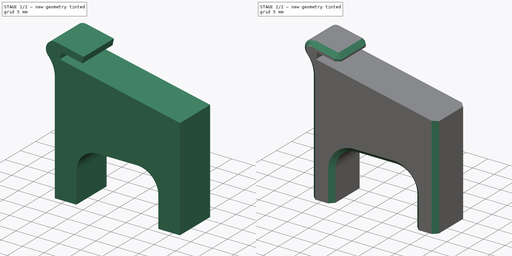
[diagram: build sequence overview — one tinted view per stage of 2, left to right]
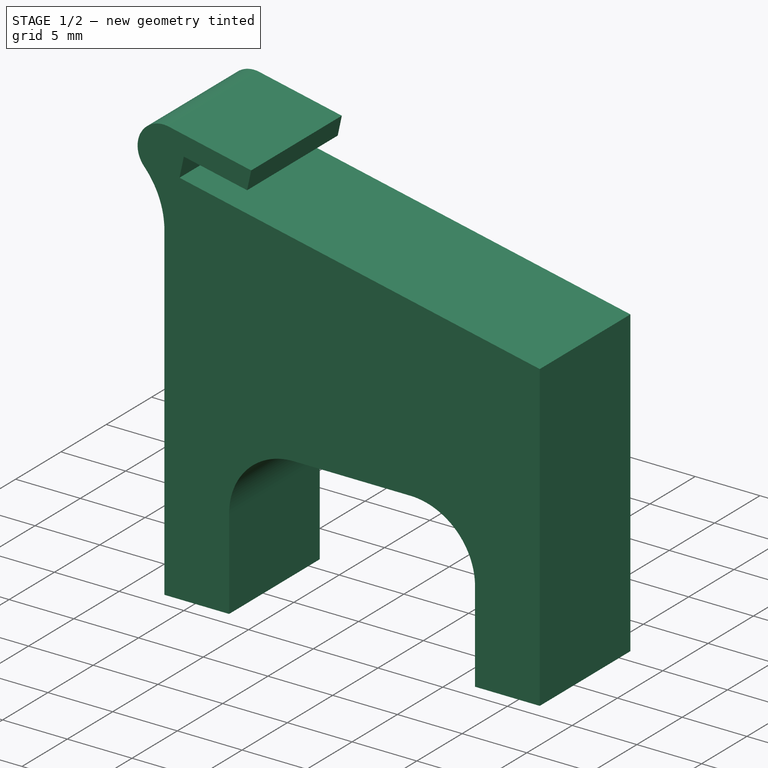
[diagram: stage 1 of 2 — iso view after this stage's code; geometry added in this stage tinted green]
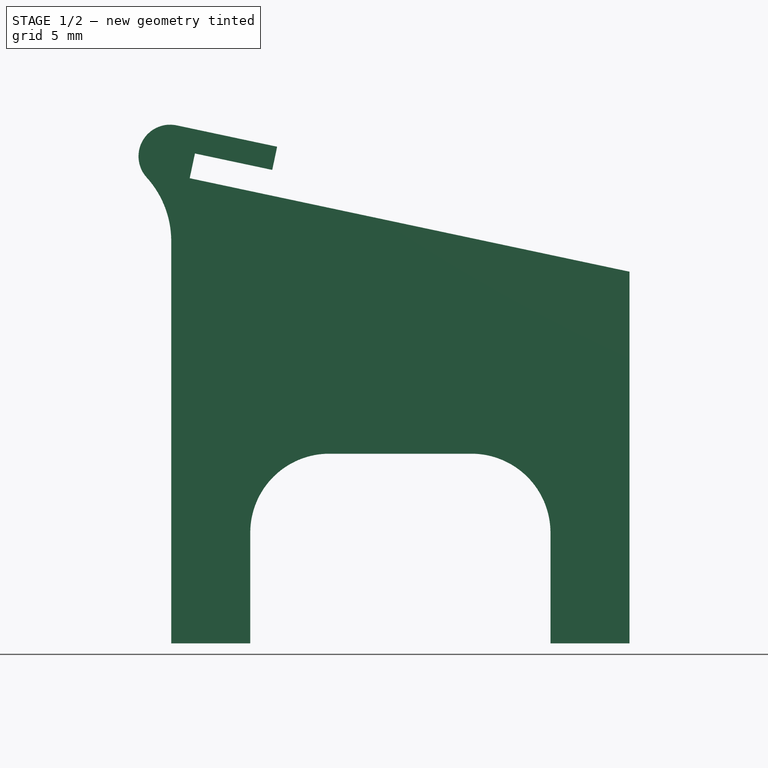
[diagram: stage 1 of 2 — front view after this stage's code; geometry added in this stage tinted green]
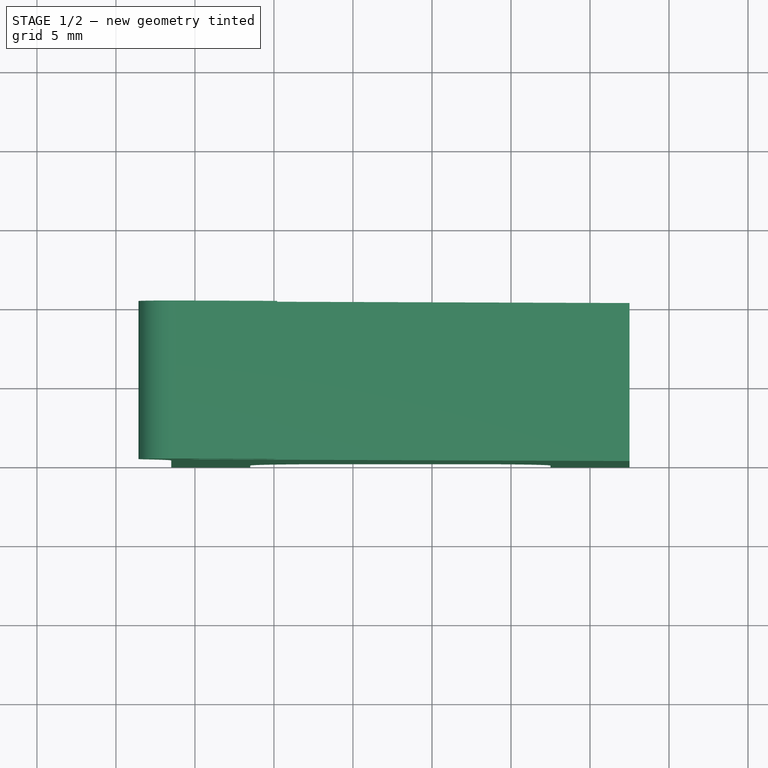
[diagram: stage 1 of 2 — top view after this stage's code; geometry added in this stage tinted green]
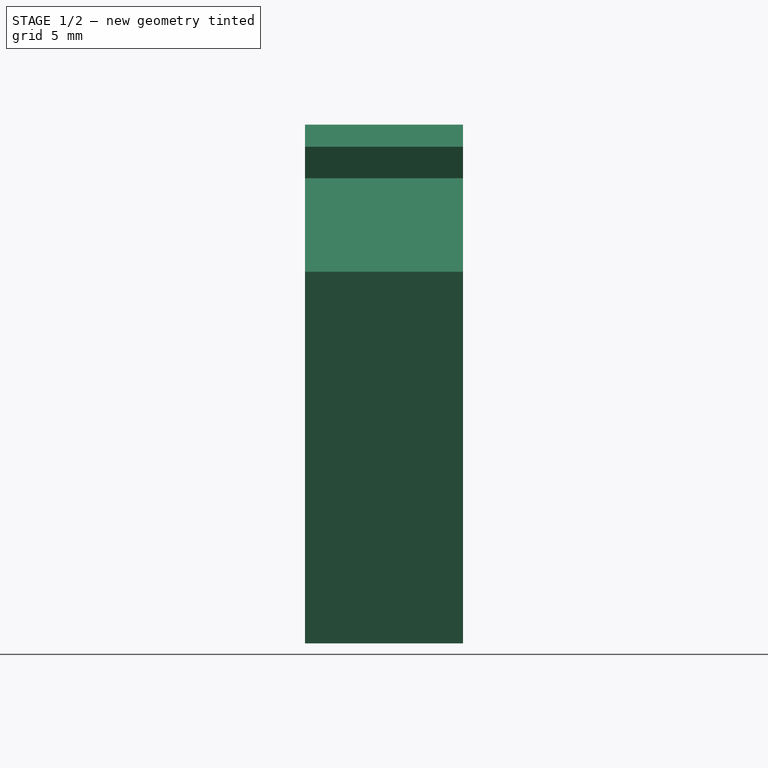
[diagram: stage 1 of 2 — right view after this stage's code; geometry added in this stage tinted green]
FCSTD DOCUMENT  (FreeCAD 1.1R20260108 (Git shallow))
Label: XE-mid-keeb-support
License: Creative Commons Attribution 4.0
LicenseURL: https://creativecommons.org/licenses/by/4.0/
objects: App::Point×1, Sketcher::SketchObject×1, PartDesign::Pad×1, PartDesign::Chamfer×1, PartDesign::Body×1
note: 9 computed .brp shape members not serialized (recipe doc carries the construction recipe); baked Part::Feature solids carry a one-line shape summary decoded from their .brp

FEATURE [App::Point] Origin001
  Role = Origin
FEATURE [Sketcher::SketchObject] Sketch
  ArcFitTolerance = 1e-06
  AttachmentSupport = -> [Origin]
  ExternalTypes = [0]
  FullyConstrained = true
  MakeInternals = false
  MapMode = 5
  Placement = pos=(0,0,0) rot=(1,0,0;1.5708rad)
  sketch-geometry (16):
    g0: LineSegment StartX=-1.5 StartY=0 StartZ=0 EndX=-1.5 EndY=25.4517 EndZ=0
    g1: ArcOfCircle CenterX=-1.57118 CenterY=30.8228 CenterZ=0 NormalX=0 NormalY=0 NormalZ=1 AngleXU=0 Radius=2 StartAngle=1.36136 EndAngle=3.87768
    g2: LineSegment StartX=-1.15535 StartY=32.7791 StartZ=0 EndX=5.20261 EndY=31.4277 EndZ=0
    g3: LineSegment StartX=5.20261 StartY=31.4277 StartZ=0 EndX=4.89074 EndY=29.9604 EndZ=0
    g4: LineSegment StartX=4.89074 StartY=29.9604 StartZ=0 EndX=0 EndY=31 EndZ=0
    g5: LineSegment StartX=0 StartY=31 StartZ=0 EndX=-0.332659 EndY=29.435 EndZ=0
    g6: LineSegment StartX=-0.332659 StartY=29.435 StartZ=0 EndX=27.5 EndY=23.5189 EndZ=0
    g7: LineSegment StartX=27.5 StartY=23.5189 StartZ=0 EndX=27.5 EndY=0 EndZ=0
    g8: LineSegment StartX=27.5 StartY=0 StartZ=0 EndX=22.5 EndY=0 EndZ=0
    g9: LineSegment StartX=22.5 StartY=0 StartZ=0 EndX=22.5 EndY=7 EndZ=0
    g10: ArcOfCircle CenterX=17.5 CenterY=7 CenterZ=0 NormalX=0 NormalY=0 NormalZ=1 AngleXU=0 Radius=5 StartAngle=0 EndAngle=1.5708
    g11: LineSegment StartX=17.5 StartY=12 StartZ=0 EndX=8.5 EndY=12 EndZ=0
    g12: ArcOfCircle CenterX=8.5 CenterY=7 CenterZ=0 NormalX=0 NormalY=0 NormalZ=1 AngleXU=0 Radius=5 StartAngle=1.5708 EndAngle=3.14159
    g13: LineSegment StartX=3.5 StartY=7 StartZ=0 EndX=3.5 EndY=0 EndZ=0
    g14: LineSegment StartX=3.5 StartY=0 StartZ=0 EndX=-1.5 EndY=0 EndZ=0
    g15: ArcOfCircle CenterX=-7.5 CenterY=25.4517 CenterZ=0 NormalX=0 NormalY=0 NormalZ=1 AngleXU=0 Radius=6 StartAngle=0 EndAngle=0.736085
  constraints (50):
    c: PointOnObject(g0,g-1)
    c: Vertical(g0)
    c: Coincident(g2,g3)
    c: Coincident(g3,g4)
    c: PointOnObject(g4,g-2)
    c: Coincident(g4,g5)
    c: Coincident(g5,g6)
    c: Coincident(g6,g7)
    c: PointOnObject(g7,g-1)
    c: Vertical(g7)
    c: Coincident(g7,g8)
    c: PointOnObject(g8,g-1)
    c: Coincident(g8,g9)
    c: Vertical(g9)
    c: Coincident(g10,g11)
    c: Horizontal(g11)
    c: Coincident(g12,g13)
    c: PointOnObject(g13,g-1)
    c: Vertical(g13)
    c: Coincident(g13,g14)
    c: Coincident(g14,g0)
    c: Equal(g12,g10)
    c: Equal(g14,g8)
    c: Tangent(g1,g2) = 1.5708
    c: Parallel(g2,g4)
    c: Parallel(g4,g6)
    c: Perpendicular(g4,g5)
    c: Vertical(g10,g10)
    c: Horizontal(g12,g12)
    c: Coincident(g12,g11)
    c: Vertical(g12,g11)
    c: Coincident(g10,g9)
    c: Horizontal(g10,g9)
    c: Radius(g10) = 5
    c: Distance(g5) = 1.6
    c: Perpendicular(g2,g3)
    c: Distance(g3) = 1.5
    c: DistanceX(g14,g14) = 5
    c: DistanceX(g13,g8) = 19
    c: Angle(g6,g-1) = 0.20944
    c: Distance(g4) = 5
    c: DistanceY(g-1,g4) = 31
    c: Radius(g1) = 2
    c: Coincident(g15,g0)
    c: Tangent(g15,g1) = 1.5708
    c: Horizontal(g15,g0)
    c: DistanceY(g13,g11) = 12
    c: Distance(g2) = 6.5
    c: Radius(g15) = 6
    c: DistanceX(g0,g-1) = 1.5
FEATURE [PartDesign::Pad] Pad
  Direction = (0,-1,2e-16)
  Length = 10
  Length2 = 10
  Profile = -> Sketch
  ReferenceAxis = -> Sketch [N_Axis]
  SideType = 0
  Suppressed = false
  Type = 0
  Type2 = 0
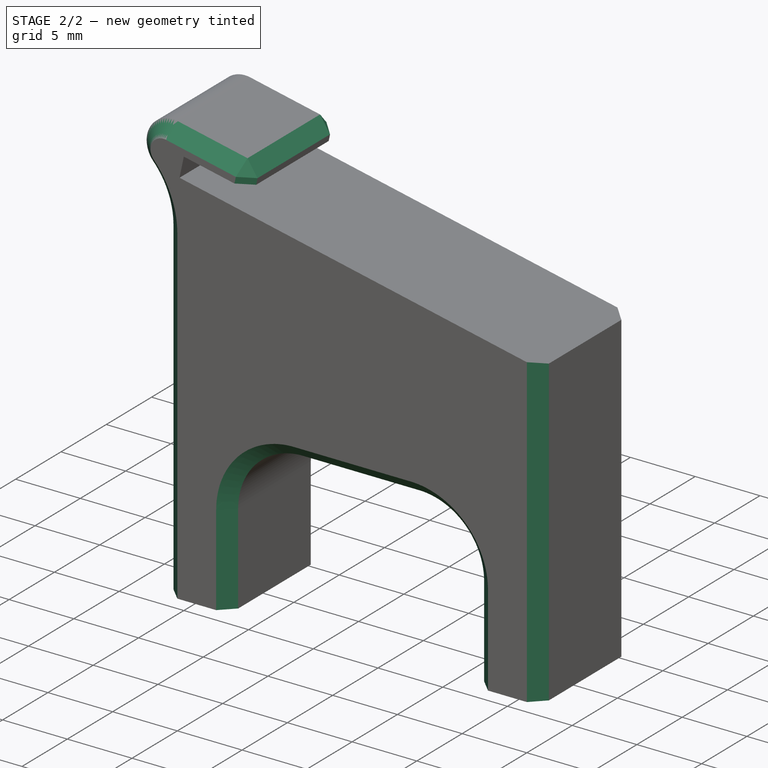
[diagram: stage 2 of 2 — iso view after this stage's code; geometry added in this stage tinted green]
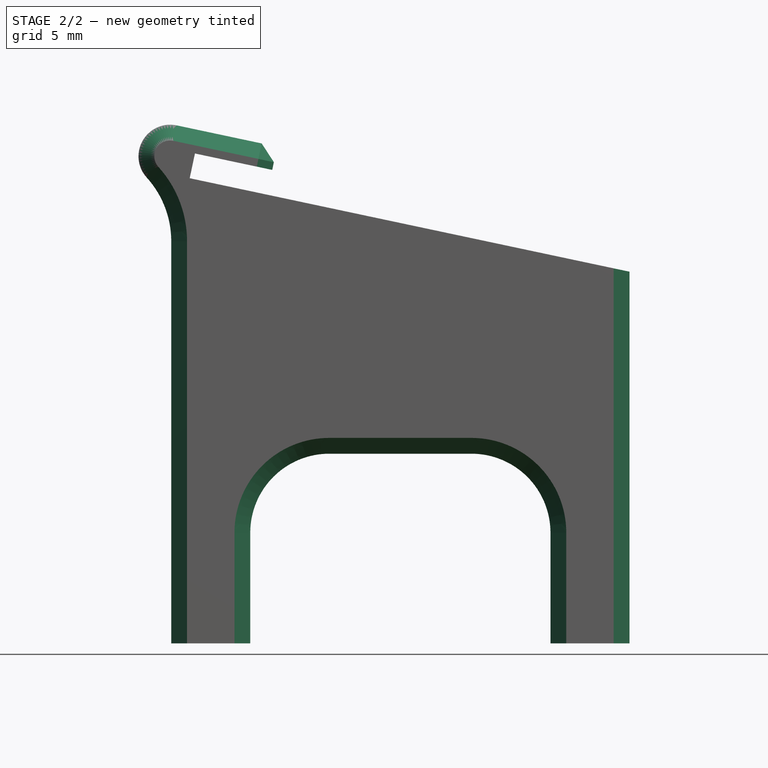
[diagram: stage 2 of 2 — front view after this stage's code; geometry added in this stage tinted green]
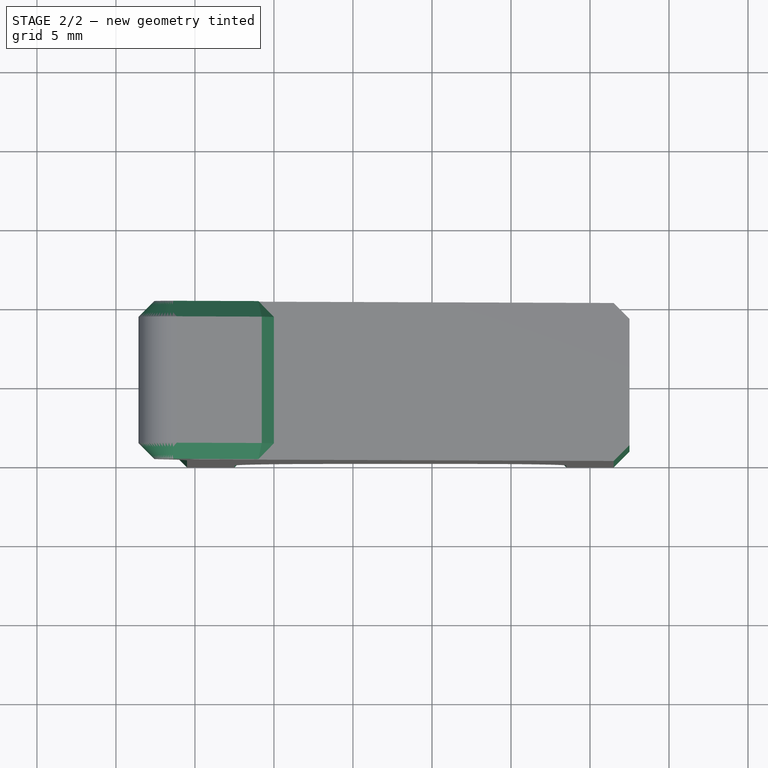
[diagram: stage 2 of 2 — top view after this stage's code; geometry added in this stage tinted green]
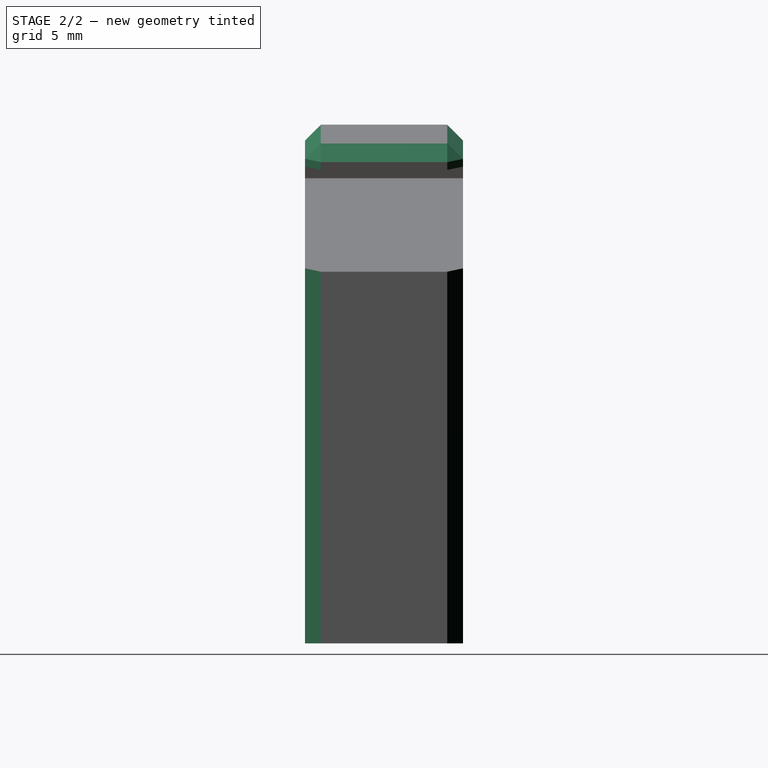
[diagram: stage 2 of 2 — right view after this stage's code; geometry added in this stage tinted green]
FEATURE [PartDesign::Chamfer] Chamfer
  Angle = 45
  Base = -> Pad [Edge43,Edge37,Edge19,Edge18,Edge42,Edge24,Edge2,Edge6,Edge7]
  BaseFeature = -> Pad
  ChamferType = 0
  FlipDirection = false
  Size = 1
  Size2 = 1
  SupportTransform = false
  Suppressed = false
  UseAllEdges = false
FEATURE [PartDesign::Body] Body  label="Support"
  AllowCompound = false
  Group = -> [Sketch,Pad,Chamfer]
  Origin = -> Origin
  Placement = pos=(0,0,0) rot=(1,0,0;4.71239rad)
  Tip = -> Chamfer
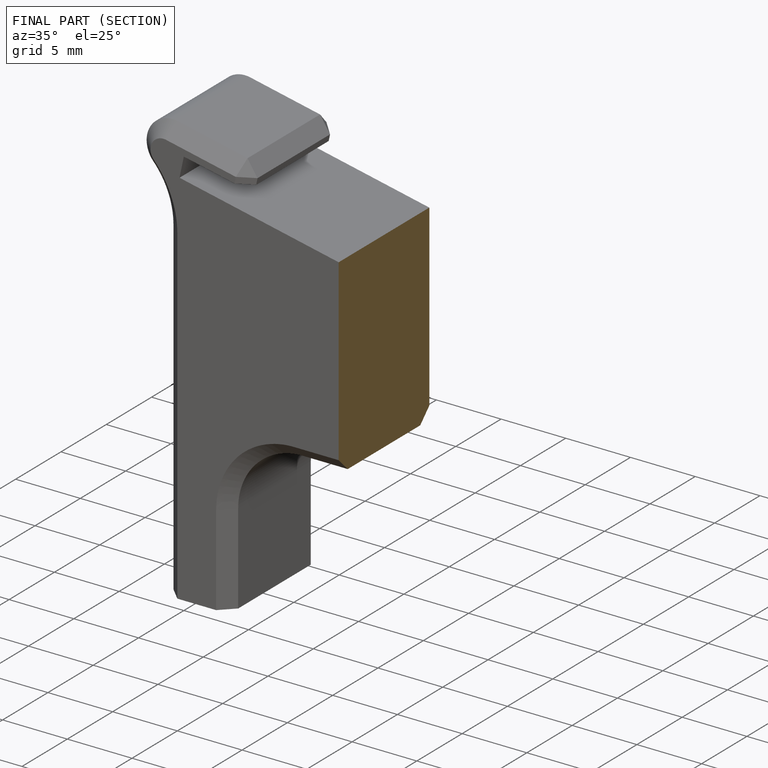
[diagram: finished part — half-section view (interior)]
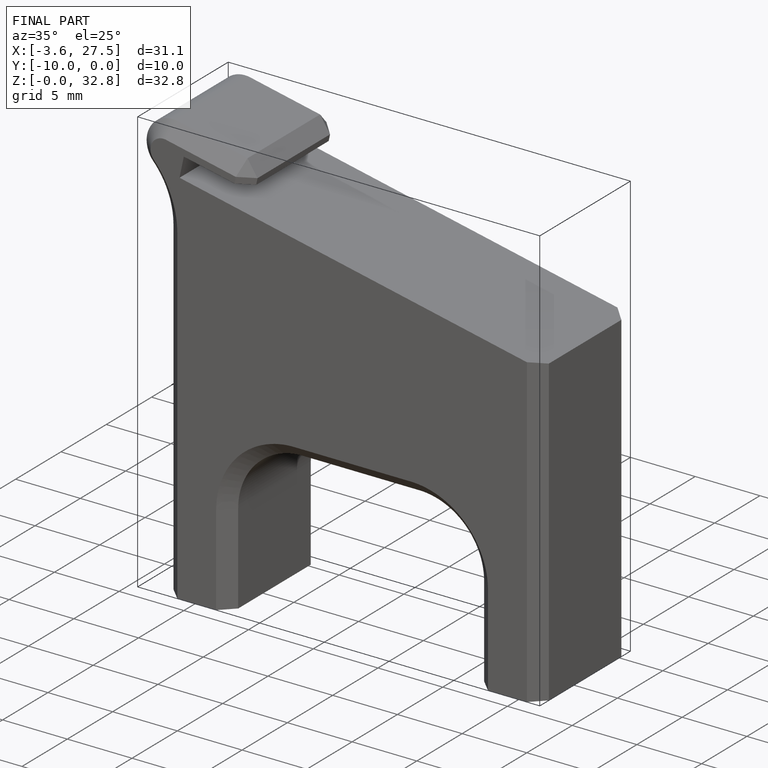
[diagram: finished part — iso view with bounding-box wireframe]
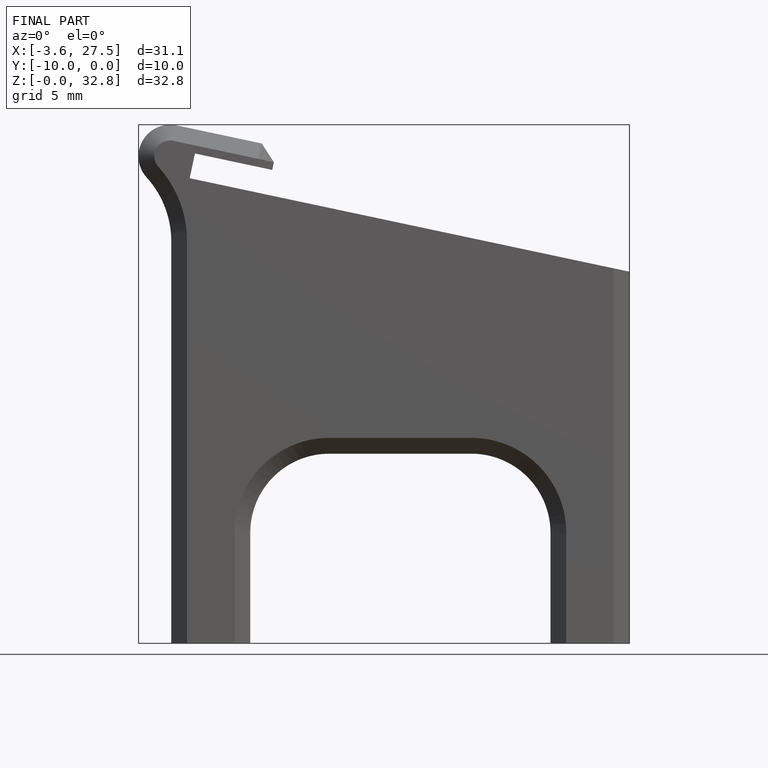
[diagram: finished part — front view with bounding-box wireframe]
